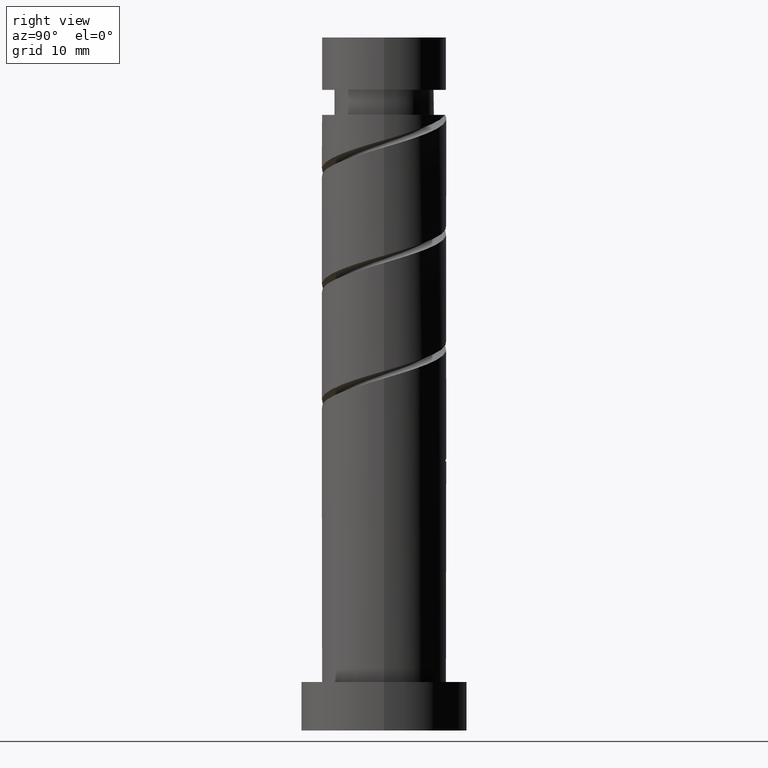
[diagram: clean part render]
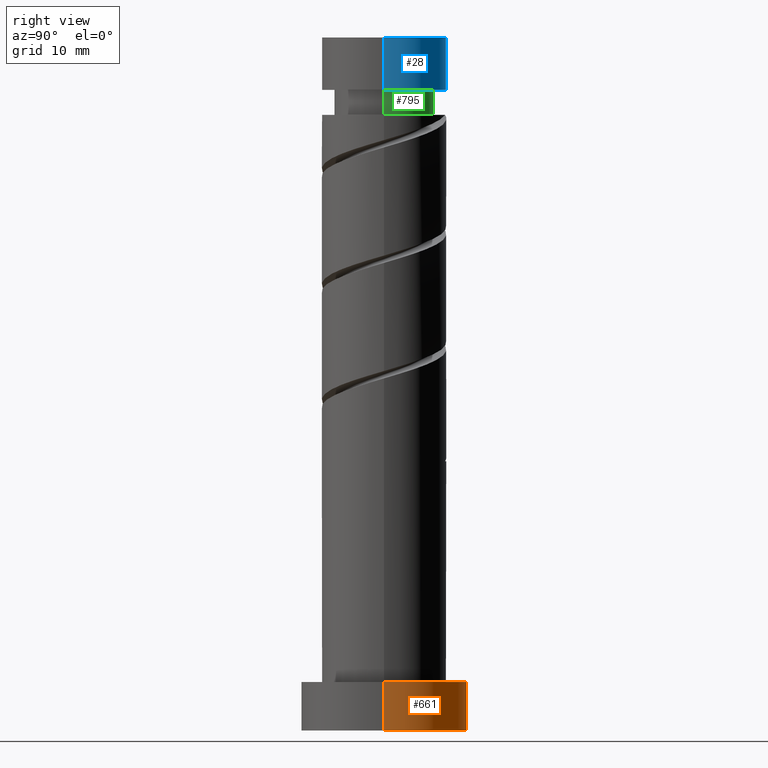
[diagram: same view with three faces highlighted in distinct colors, each labeled with its STEP entity id]
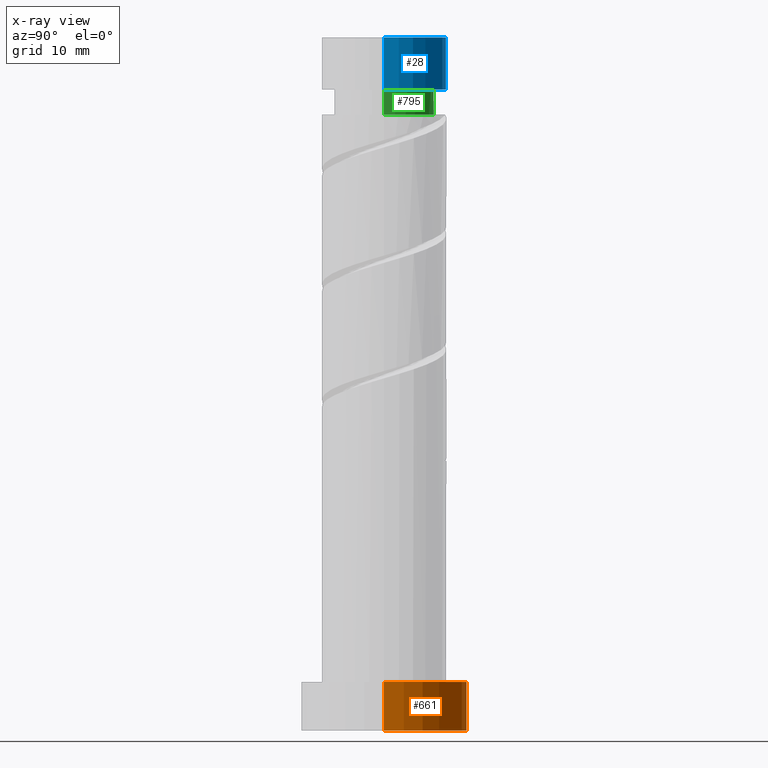
[diagram: x-ray of the same camera — body ghosted, the three highlighted faces saturated]
A machine part, right view with three faces highlighted in distinct colors.
The next image is the same camera in x-ray (body ghosted, the three faces saturated) — at least one of them is partly hidden behind the body in this view.
Their STEP definitions:

[orange] entity #661 — the highlighted cylindrical surface (partial cylindrical patch) has radius 12 mm, axis along (-0, -0, -1).
#74 = CARTESIAN_POINT ( 'NONE',  ( 0.000000000000000000, 0.000000000000000000, 7.000000000000000000 ) ) ;
#87 = DIRECTION ( 'NONE',  ( 0.000000000000000000, 0.000000000000000000, 1.000000000000000000 ) ) ;
#88 = EDGE_CURVE ( 'NONE', #1171, #885, #190, .T. ) ;
#118 = VERTEX_POINT ( 'NONE', #675 ) ;
#126 = CARTESIAN_POINT ( 'NONE',  ( 0.000000000000000000, 0.000000000000000000, 0.000000000000000000 ) ) ;
#142 = DIRECTION ( 'NONE',  ( 0.000000000000000000, 0.000000000000000000, 1.000000000000000000 ) ) ;
#188 = DIRECTION ( 'NONE',  ( 1.000000000000000000, 0.000000000000000000, 0.000000000000000000 ) ) ;
#190 = CIRCLE ( 'NONE', #1083, 12.00000000000000178 ) ;
#241 = CIRCLE ( 'NONE', #1274, 12.00000000000000178 ) ;
#295 = CARTESIAN_POINT ( 'NONE',  ( -12.00000000000000178, 0.000000000000000000, 7.000000000000000000 ) ) ;
#352 = ORIENTED_EDGE ( 'NONE', *, *, #88, .T. ) ;
#408 = CARTESIAN_POINT ( 'NONE',  ( 12.00000000000000178, 1.469576158976824144E-15, 7.000000000000000000 ) ) ;
#469 = DIRECTION ( 'NONE',  ( 1.000000000000000000, 0.000000000000000000, 0.000000000000000000 ) ) ;
#486 = AXIS2_PLACEMENT_3D ( 'NONE', #74, #869, #1113 ) ;
#550 = EDGE_CURVE ( 'NONE', #1065, #885, #660, .T. ) ;
#634 = EDGE_CURVE ( 'NONE', #118, #1065, #241, .T. ) ;
#660 = LINE ( 'NONE', #295, #1128 ) ;
#661 = ADVANCED_FACE ( 'NONE', ( #1327 ), #1214, .T. ) ;
#675 = CARTESIAN_POINT ( 'NONE',  ( 12.00000000000000178, 1.469576158976824144E-15, 7.000000000000000000 ) ) ;
#731 = EDGE_CURVE ( 'NONE', #118, #1171, #1236, .T. ) ;
#748 = ORIENTED_EDGE ( 'NONE', *, *, #550, .F. ) ;
#869 = DIRECTION ( 'NONE',  ( -0.000000000000000000, -0.000000000000000000, -1.000000000000000000 ) ) ;
#883 = DIRECTION ( 'NONE',  ( -0.000000000000000000, -0.000000000000000000, -1.000000000000000000 ) ) ;
#885 = VERTEX_POINT ( 'NONE', #1154 ) ;
#990 = DIRECTION ( 'NONE',  ( -0.000000000000000000, -0.000000000000000000, -1.000000000000000000 ) ) ;
#1065 = VERTEX_POINT ( 'NONE', #1160 ) ;
#1083 = AXIS2_PLACEMENT_3D ( 'NONE', #126, #142, #469 ) ;
#1098 = CARTESIAN_POINT ( 'NONE',  ( 0.000000000000000000, 0.000000000000000000, 7.000000000000000000 ) ) ;
#1113 = DIRECTION ( 'NONE',  ( -1.000000000000000000, 0.000000000000000000, 0.000000000000000000 ) ) ;
#1128 = VECTOR ( 'NONE', #990, 1000.000000000000000 ) ;
#1154 = CARTESIAN_POINT ( 'NONE',  ( -12.00000000000000178, 0.000000000000000000, 0.000000000000000000 ) ) ;
#1160 = CARTESIAN_POINT ( 'NONE',  ( -12.00000000000000178, 0.000000000000000000, 7.000000000000000000 ) ) ;
#1171 = VERTEX_POINT ( 'NONE', #1352 ) ;
#1204 = VECTOR ( 'NONE', #883, 1000.000000000000000 ) ;
#1214 = CYLINDRICAL_SURFACE ( 'NONE', #486, 12.00000000000000178 ) ;
#1236 = LINE ( 'NONE', #408, #1204 ) ;
#1274 = AXIS2_PLACEMENT_3D ( 'NONE', #1098, #87, #188 ) ;
#1327 = FACE_OUTER_BOUND ( 'NONE', #1404, .T. ) ;
#1352 = CARTESIAN_POINT ( 'NONE',  ( 12.00000000000000178, 1.469576158976824144E-15, 0.000000000000000000 ) ) ;
#1377 = ORIENTED_EDGE ( 'NONE', *, *, #634, .F. ) ;
#1404 = EDGE_LOOP ( 'NONE', ( #1377, #1410, #352, #748 ) ) ;
#1410 = ORIENTED_EDGE ( 'NONE', *, *, #731, .T. ) ;

[blue] entity #28 — the highlighted cylindrical surface (partial cylindrical patch) has radius 9 mm, axis along (-0, -0, -1).
#28 = ADVANCED_FACE ( 'NONE', ( #119 ), #1397, .T. ) ;
#38 = ORIENTED_EDGE ( 'NONE', *, *, #889, .F. ) ;
#46 = DIRECTION ( 'NONE',  ( 0.000000000000000000, 0.000000000000000000, 1.000000000000000000 ) ) ;
#119 = FACE_OUTER_BOUND ( 'NONE', #239, .T. ) ;
#186 = EDGE_CURVE ( 'NONE', #211, #1298, #601, .T. ) ;
#197 = LINE ( 'NONE', #1131, #1250 ) ;
#211 = VERTEX_POINT ( 'NONE', #739 ) ;
#228 = CARTESIAN_POINT ( 'NONE',  ( -9.000000000000000000, 0.000000000000000000, 100.0000000000000000 ) ) ;
#239 = EDGE_LOOP ( 'NONE', ( #1369, #595, #835, #38 ) ) ;
#255 = CARTESIAN_POINT ( 'NONE',  ( 9.000000000000001776, 1.102182119232617714E-15, 92.44664318135319547 ) ) ;
#267 = CIRCLE ( 'NONE', #1101, 9.000000000000001776 ) ;
#279 = CARTESIAN_POINT ( 'NONE',  ( 0.000000000000000000, 0.000000000000000000, 100.0000000000000000 ) ) ;
#281 = CARTESIAN_POINT ( 'NONE',  ( 0.000000000000000000, 0.000000000000000000, 92.44664318135319547 ) ) ;
#336 = CARTESIAN_POINT ( 'NONE',  ( -9.000000000000000000, 0.000000000000000000, 100.0000000000000000 ) ) ;
#487 = EDGE_CURVE ( 'NONE', #1048, #1485, #267, .T. ) ;
#595 = ORIENTED_EDGE ( 'NONE', *, *, #773, .T. ) ;
#601 = CIRCLE ( 'NONE', #1300, 9.000000000000000000 ) ;
#625 = DIRECTION ( 'NONE',  ( -1.000000000000000000, 0.000000000000000000, 0.000000000000000000 ) ) ;
#652 = DIRECTION ( 'NONE',  ( -0.000000000000000000, -0.000000000000000000, -1.000000000000000000 ) ) ;
#674 = VECTOR ( 'NONE', #677, 1000.000000000000000 ) ;
#677 = DIRECTION ( 'NONE',  ( -0.000000000000000000, -0.000000000000000000, -1.000000000000000000 ) ) ;
#715 = CARTESIAN_POINT ( 'NONE',  ( -9.000000000000001776, 0.000000000000000000, 92.44664318135319547 ) ) ;
#739 = CARTESIAN_POINT ( 'NONE',  ( 9.000000000000000000, 1.102182119232617517E-15, 100.0000000000000000 ) ) ;
#773 = EDGE_CURVE ( 'NONE', #211, #1485, #197, .T. ) ;
#789 = LINE ( 'NONE', #228, #674 ) ;
#835 = ORIENTED_EDGE ( 'NONE', *, *, #487, .F. ) ;
#889 = EDGE_CURVE ( 'NONE', #1298, #1048, #789, .T. ) ;
#1048 = VERTEX_POINT ( 'NONE', #715 ) ;
#1061 = AXIS2_PLACEMENT_3D ( 'NONE', #1280, #1169, #1247 ) ;
#1101 = AXIS2_PLACEMENT_3D ( 'NONE', #281, #1199, #625 ) ;
#1131 = CARTESIAN_POINT ( 'NONE',  ( 9.000000000000000000, 1.102182119232617517E-15, 100.0000000000000000 ) ) ;
#1169 = DIRECTION ( 'NONE',  ( -0.000000000000000000, -0.000000000000000000, -1.000000000000000000 ) ) ;
#1199 = DIRECTION ( 'NONE',  ( -0.000000000000000000, -0.000000000000000000, -1.000000000000000000 ) ) ;
#1221 = DIRECTION ( 'NONE',  ( 1.000000000000000000, 0.000000000000000000, 0.000000000000000000 ) ) ;
#1247 = DIRECTION ( 'NONE',  ( -1.000000000000000000, 0.000000000000000000, 0.000000000000000000 ) ) ;
#1250 = VECTOR ( 'NONE', #652, 1000.000000000000000 ) ;
#1280 = CARTESIAN_POINT ( 'NONE',  ( 0.000000000000000000, 0.000000000000000000, 100.0000000000000000 ) ) ;
#1298 = VERTEX_POINT ( 'NONE', #336 ) ;
#1300 = AXIS2_PLACEMENT_3D ( 'NONE', #279, #46, #1221 ) ;
#1369 = ORIENTED_EDGE ( 'NONE', *, *, #186, .F. ) ;
#1397 = CYLINDRICAL_SURFACE ( 'NONE', #1061, 9.000000000000000000 ) ;
#1485 = VERTEX_POINT ( 'NONE', #255 ) ;

[green] entity #795 — the highlighted cylindrical surface (partial cylindrical patch) has radius 7.2 mm, axis along (-0, -0, -1).
#13 = VERTEX_POINT ( 'NONE', #345 ) ;
#56 = CIRCLE ( 'NONE', #1085, 7.200000000000001954 ) ;
#158 = VERTEX_POINT ( 'NONE', #1084 ) ;
#193 = CIRCLE ( 'NONE', #823, 7.200000000000001954 ) ;
#205 = FACE_OUTER_BOUND ( 'NONE', #693, .T. ) ;
#212 = DIRECTION ( 'NONE',  ( -1.000000000000000000, 0.000000000000000000, 0.000000000000000000 ) ) ;
#221 = ORIENTED_EDGE ( 'NONE', *, *, #1216, .F. ) ;
#300 = ORIENTED_EDGE ( 'NONE', *, *, #617, .F. ) ;
#314 = CARTESIAN_POINT ( 'NONE',  ( 0.000000000000000000, 0.000000000000000000, 88.84664318135318695 ) ) ;
#345 = CARTESIAN_POINT ( 'NONE',  ( 7.200000000000001954, 8.817456953860946247E-16, 88.84664318135318695 ) ) ;
#370 = ORIENTED_EDGE ( 'NONE', *, *, #521, .F. ) ;
#397 = LINE ( 'NONE', #861, #892 ) ;
#402 = CARTESIAN_POINT ( 'NONE',  ( 0.000000000000000000, 0.000000000000000000, 92.44664318135319547 ) ) ;
#429 = AXIS2_PLACEMENT_3D ( 'NONE', #1439, #1375, #942 ) ;
#437 = CARTESIAN_POINT ( 'NONE',  ( -7.200000000000001954, 0.000000000000000000, 92.44664318135319547 ) ) ;
#504 = CIRCLE ( 'NONE', #1010, 7.200000000000001954 ) ;
#521 = EDGE_CURVE ( 'NONE', #1296, #1150, #397, .T. ) ;
#617 = EDGE_CURVE ( 'NONE', #681, #13, #504, .T. ) ;
#671 = ORIENTED_EDGE ( 'NONE', *, *, #1265, .T. ) ;
#680 = DIRECTION ( 'NONE',  ( -1.000000000000000000, 0.000000000000000000, 0.000000000000000000 ) ) ;
#681 = VERTEX_POINT ( 'NONE', #1444 ) ;
#693 = EDGE_LOOP ( 'NONE', ( #1179, #671, #300, #221, #370 ) ) ;
#776 = DIRECTION ( 'NONE',  ( -1.000000000000000000, 0.000000000000000000, 0.000000000000000000 ) ) ;
#786 = DIRECTION ( 'NONE',  ( -0.000000000000000000, -0.000000000000000000, -1.000000000000000000 ) ) ;
#794 = EDGE_CURVE ( 'NONE', #1296, #158, #56, .T. ) ;
#795 = ADVANCED_FACE ( 'NONE', ( #205 ), #981, .T. ) ;
#823 = AXIS2_PLACEMENT_3D ( 'NONE', #314, #1231, #680 ) ;
#861 = CARTESIAN_POINT ( 'NONE',  ( -7.200000000000001954, 0.000000000000000000, 0.000000000000000000 ) ) ;
#892 = VECTOR ( 'NONE', #1321, 1000.000000000000000 ) ;
#942 = DIRECTION ( 'NONE',  ( -1.000000000000000000, 0.000000000000000000, 0.000000000000000000 ) ) ;
#981 = CYLINDRICAL_SURFACE ( 'NONE', #429, 7.200000000000001954 ) ;
#987 = VECTOR ( 'NONE', #786, 1000.000000000000000 ) ;
#996 = DIRECTION ( 'NONE',  ( -0.000000000000000000, -0.000000000000000000, -1.000000000000000000 ) ) ;
#1010 = AXIS2_PLACEMENT_3D ( 'NONE', #1120, #996, #212 ) ;
#1084 = CARTESIAN_POINT ( 'NONE',  ( 7.200000000000001954, 8.817456953860946247E-16, 92.44664318135319547 ) ) ;
#1085 = AXIS2_PLACEMENT_3D ( 'NONE', #402, #1349, #776 ) ;
#1120 = CARTESIAN_POINT ( 'NONE',  ( 0.000000000000000000, 0.000000000000000000, 88.84664318135318695 ) ) ;
#1134 = CARTESIAN_POINT ( 'NONE',  ( 7.200000000000001954, 8.817456953860946247E-16, 0.000000000000000000 ) ) ;
#1150 = VERTEX_POINT ( 'NONE', #1476 ) ;
#1179 = ORIENTED_EDGE ( 'NONE', *, *, #794, .T. ) ;
#1216 = EDGE_CURVE ( 'NONE', #1150, #681, #193, .T. ) ;
#1231 = DIRECTION ( 'NONE',  ( -0.000000000000000000, -0.000000000000000000, -1.000000000000000000 ) ) ;
#1262 = LINE ( 'NONE', #1134, #987 ) ;
#1265 = EDGE_CURVE ( 'NONE', #158, #13, #1262, .T. ) ;
#1296 = VERTEX_POINT ( 'NONE', #437 ) ;
#1321 = DIRECTION ( 'NONE',  ( -0.000000000000000000, -0.000000000000000000, -1.000000000000000000 ) ) ;
#1349 = DIRECTION ( 'NONE',  ( -0.000000000000000000, -0.000000000000000000, -1.000000000000000000 ) ) ;
#1375 = DIRECTION ( 'NONE',  ( -0.000000000000000000, -0.000000000000000000, -1.000000000000000000 ) ) ;
#1439 = CARTESIAN_POINT ( 'NONE',  ( 0.000000000000000000, 0.000000000000000000, 0.000000000000000000 ) ) ;
#1444 = CARTESIAN_POINT ( 'NONE',  ( -1.318389841742373550E-14, 7.200000000000001954, 88.84664318135318695 ) ) ;
#1476 = CARTESIAN_POINT ( 'NONE',  ( -7.200000000000001954, 0.000000000000000000, 88.84664318135318695 ) ) ;